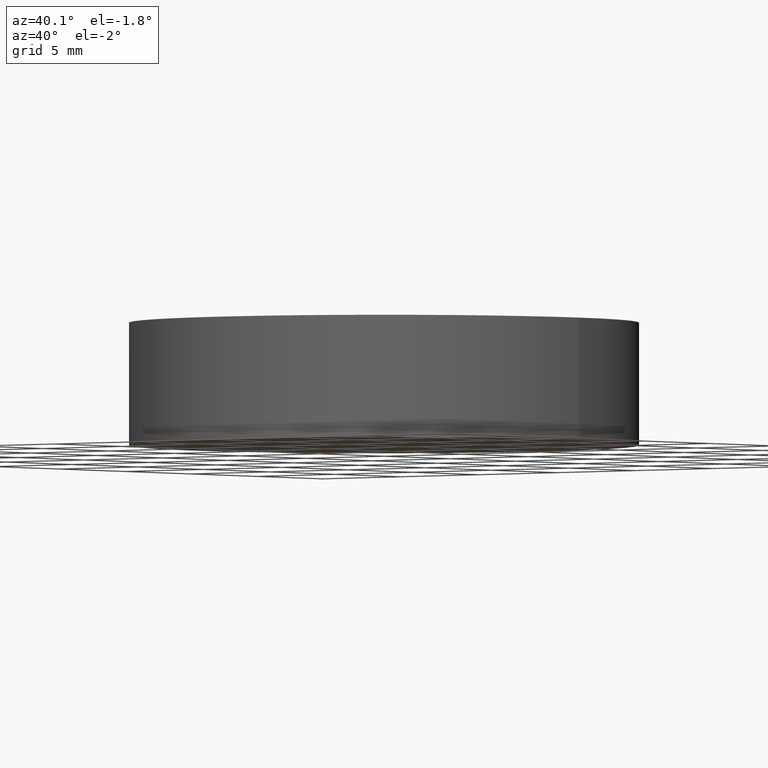
[diagram: clean part render]
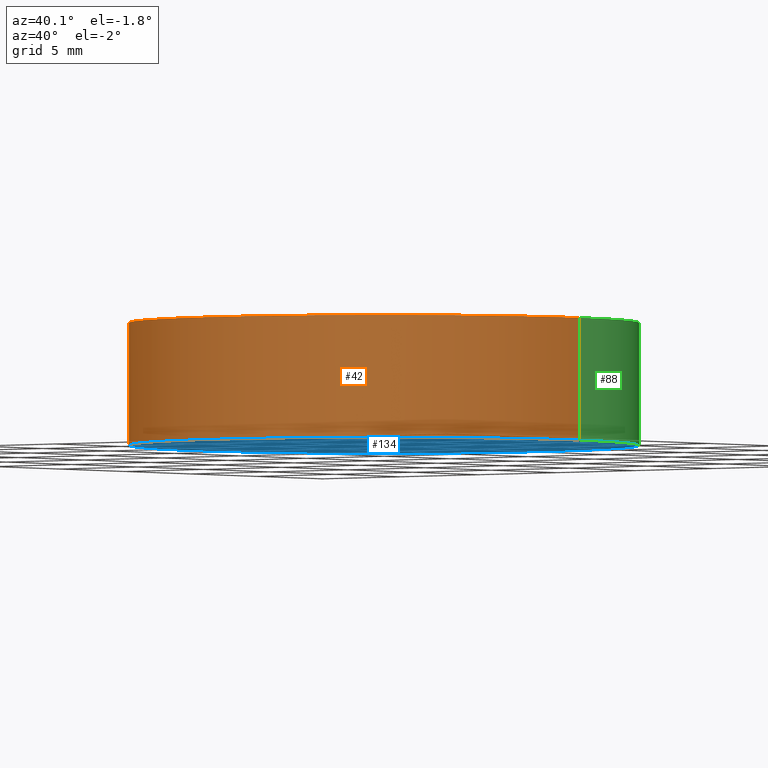
[diagram: same view with three faces highlighted in distinct colors, each labeled with its STEP entity id]
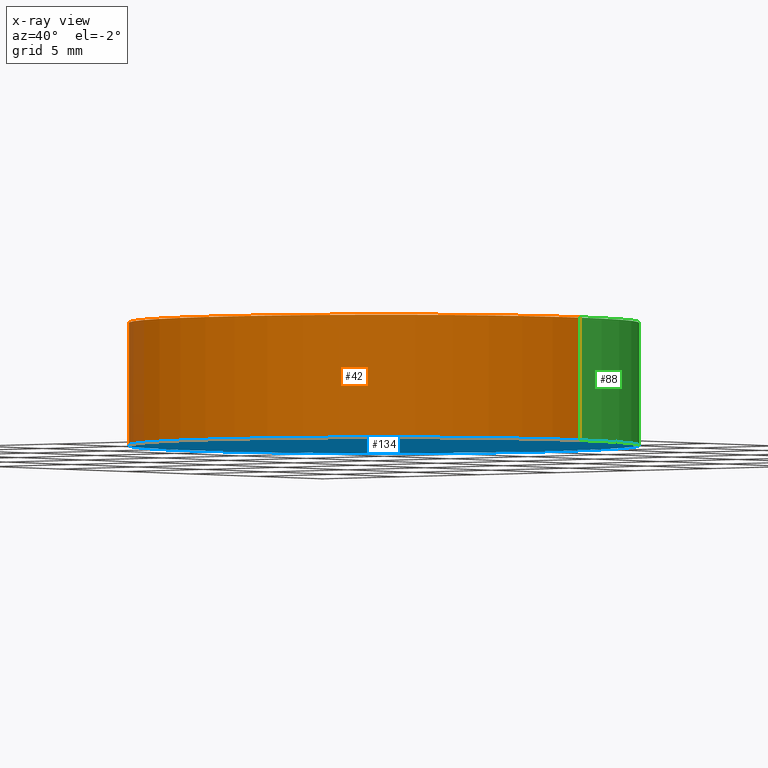
[diagram: x-ray of the same camera — body ghosted, the three highlighted faces saturated]
A machine part, auxiliary view with three faces highlighted in distinct colors.
The next image is the same camera in x-ray (body ghosted, the three faces saturated) — at least one of them is partly hidden behind the body in this view.
Their STEP definitions:

[orange] entity #42 — the highlighted cylindrical surface (partial cylindrical patch) has radius 12.5 mm, axis along (-0, -0, -1).
#7 = DIRECTION ( 'NONE',  ( -0.0000000000000000000, -0.0000000000000000000, -1.000000000000000000 ) ) ;
#13 = VECTOR ( 'NONE', #20, 1000.000000000000000 ) ;
#16 = ORIENTED_EDGE ( 'NONE', *, *, #23, .T. ) ;
#20 = DIRECTION ( 'NONE',  ( -0.0000000000000000000, -0.0000000000000000000, -1.000000000000000000 ) ) ;
#23 = EDGE_CURVE ( 'NONE', #119, #120, #91, .T. ) ;
#29 = EDGE_CURVE ( 'NONE', #69, #37, #121, .T. ) ;
#33 = CARTESIAN_POINT ( 'NONE',  ( 12.50000000000000000, 1.530808498934191500E-015, 6.000000000000000000 ) ) ;
#34 = DIRECTION ( 'NONE',  ( 0.0000000000000000000, 0.0000000000000000000, 1.000000000000000000 ) ) ;
#36 = CARTESIAN_POINT ( 'NONE',  ( 12.50000000000000000, 1.530808498934191500E-015, 6.000000000000000000 ) ) ;
#37 = VERTEX_POINT ( 'NONE', #46 ) ;
#38 = ORIENTED_EDGE ( 'NONE', *, *, #78, .T. ) ;
#42 = ADVANCED_FACE ( 'NONE', ( #53 ), #124, .T. ) ;
#44 = AXIS2_PLACEMENT_3D ( 'NONE', #140, #56, #130 ) ;
#46 = CARTESIAN_POINT ( 'NONE',  ( 12.50000000000000000, 1.530808498934191500E-015, 0.0000000000000000000 ) ) ;
#53 = FACE_OUTER_BOUND ( 'NONE', #117, .T. ) ;
#56 = DIRECTION ( 'NONE',  ( 0.0000000000000000000, 0.0000000000000000000, 1.000000000000000000 ) ) ;
#57 = ORIENTED_EDGE ( 'NONE', *, *, #113, .F. ) ;
#58 = CIRCLE ( 'NONE', #72, 12.50000000000000000 ) ;
#69 = VERTEX_POINT ( 'NONE', #36 ) ;
#72 = AXIS2_PLACEMENT_3D ( 'NONE', #103, #34, #83 ) ;
#74 = CARTESIAN_POINT ( 'NONE',  ( -12.50000000000000000, 0.0000000000000000000, 6.000000000000000000 ) ) ;
#77 = CIRCLE ( 'NONE', #44, 12.50000000000000000 ) ;
#78 = EDGE_CURVE ( 'NONE', #120, #37, #77, .T. ) ;
#83 = DIRECTION ( 'NONE',  ( 1.000000000000000000, 0.0000000000000000000, 0.0000000000000000000 ) ) ;
#91 = LINE ( 'NONE', #127, #13 ) ;
#92 = DIRECTION ( 'NONE',  ( -1.000000000000000000, 0.0000000000000000000, 0.0000000000000000000 ) ) ;
#97 = CARTESIAN_POINT ( 'NONE',  ( 0.0000000000000000000, 0.0000000000000000000, 6.000000000000000000 ) ) ;
#101 = CARTESIAN_POINT ( 'NONE',  ( -12.50000000000000000, 0.0000000000000000000, 0.0000000000000000000 ) ) ;
#102 = VECTOR ( 'NONE', #7, 1000.000000000000000 ) ;
#103 = CARTESIAN_POINT ( 'NONE',  ( 0.0000000000000000000, 0.0000000000000000000, 6.000000000000000000 ) ) ;
#108 = ORIENTED_EDGE ( 'NONE', *, *, #29, .F. ) ;
#113 = EDGE_CURVE ( 'NONE', #119, #69, #58, .T. ) ;
#117 = EDGE_LOOP ( 'NONE', ( #108, #57, #16, #38 ) ) ;
#119 = VERTEX_POINT ( 'NONE', #74 ) ;
#120 = VERTEX_POINT ( 'NONE', #101 ) ;
#121 = LINE ( 'NONE', #33, #102 ) ;
#122 = AXIS2_PLACEMENT_3D ( 'NONE', #97, #137, #92 ) ;
#124 = CYLINDRICAL_SURFACE ( 'NONE', #122, 12.50000000000000000 ) ;
#127 = CARTESIAN_POINT ( 'NONE',  ( -12.50000000000000000, 0.0000000000000000000, 6.000000000000000000 ) ) ;
#130 = DIRECTION ( 'NONE',  ( 1.000000000000000000, 0.0000000000000000000, 0.0000000000000000000 ) ) ;
#137 = DIRECTION ( 'NONE',  ( -0.0000000000000000000, -0.0000000000000000000, -1.000000000000000000 ) ) ;
#140 = CARTESIAN_POINT ( 'NONE',  ( 0.0000000000000000000, 0.0000000000000000000, 0.0000000000000000000 ) ) ;

[blue] entity #134 — the highlighted planar face has unit normal (0, 0, 1).
#10 = CIRCLE ( 'NONE', #39, 12.50000000000000000 ) ;
#11 = ORIENTED_EDGE ( 'NONE', *, *, #78, .F. ) ;
#12 = ORIENTED_EDGE ( 'NONE', *, *, #98, .F. ) ;
#37 = VERTEX_POINT ( 'NONE', #46 ) ;
#39 = AXIS2_PLACEMENT_3D ( 'NONE', #55, #129, #64 ) ;
#44 = AXIS2_PLACEMENT_3D ( 'NONE', #140, #56, #130 ) ;
#46 = CARTESIAN_POINT ( 'NONE',  ( 12.50000000000000000, 1.530808498934191500E-015, 0.0000000000000000000 ) ) ;
#55 = CARTESIAN_POINT ( 'NONE',  ( 0.0000000000000000000, 0.0000000000000000000, 0.0000000000000000000 ) ) ;
#56 = DIRECTION ( 'NONE',  ( 0.0000000000000000000, 0.0000000000000000000, 1.000000000000000000 ) ) ;
#61 = DIRECTION ( 'NONE',  ( 1.000000000000000000, 0.0000000000000000000, -0.0000000000000000000 ) ) ;
#64 = DIRECTION ( 'NONE',  ( 1.000000000000000000, 0.0000000000000000000, 0.0000000000000000000 ) ) ;
#77 = CIRCLE ( 'NONE', #44, 12.50000000000000000 ) ;
#78 = EDGE_CURVE ( 'NONE', #120, #37, #77, .T. ) ;
#87 = EDGE_LOOP ( 'NONE', ( #11, #12 ) ) ;
#95 = AXIS2_PLACEMENT_3D ( 'NONE', #116, #135, #61 ) ;
#98 = EDGE_CURVE ( 'NONE', #37, #120, #10, .T. ) ;
#101 = CARTESIAN_POINT ( 'NONE',  ( -12.50000000000000000, 0.0000000000000000000, 0.0000000000000000000 ) ) ;
#115 = PLANE ( 'NONE',  #95 ) ;
#116 = CARTESIAN_POINT ( 'NONE',  ( 0.0000000000000000000, 0.0000000000000000000, 0.0000000000000000000 ) ) ;
#118 = FACE_OUTER_BOUND ( 'NONE', #87, .T. ) ;
#120 = VERTEX_POINT ( 'NONE', #101 ) ;
#129 = DIRECTION ( 'NONE',  ( 0.0000000000000000000, 0.0000000000000000000, 1.000000000000000000 ) ) ;
#130 = DIRECTION ( 'NONE',  ( 1.000000000000000000, 0.0000000000000000000, 0.0000000000000000000 ) ) ;
#134 = ADVANCED_FACE ( 'NONE', ( #118 ), #115, .F. ) ;
#135 = DIRECTION ( 'NONE',  ( 0.0000000000000000000, 0.0000000000000000000, 1.000000000000000000 ) ) ;
#140 = CARTESIAN_POINT ( 'NONE',  ( 0.0000000000000000000, 0.0000000000000000000, 0.0000000000000000000 ) ) ;

[green] entity #88 — the highlighted cylindrical surface (partial cylindrical patch) has radius 12.5 mm, axis along (-0, -0, -1).
#4 = ORIENTED_EDGE ( 'NONE', *, *, #28, .F. ) ;
#5 = CIRCLE ( 'NONE', #21, 12.50000000000000000 ) ;
#7 = DIRECTION ( 'NONE',  ( -0.0000000000000000000, -0.0000000000000000000, -1.000000000000000000 ) ) ;
#9 = CARTESIAN_POINT ( 'NONE',  ( 0.0000000000000000000, 0.0000000000000000000, 6.000000000000000000 ) ) ;
#10 = CIRCLE ( 'NONE', #39, 12.50000000000000000 ) ;
#13 = VECTOR ( 'NONE', #20, 1000.000000000000000 ) ;
#20 = DIRECTION ( 'NONE',  ( -0.0000000000000000000, -0.0000000000000000000, -1.000000000000000000 ) ) ;
#21 = AXIS2_PLACEMENT_3D ( 'NONE', #9, #51, #43 ) ;
#22 = CYLINDRICAL_SURFACE ( 'NONE', #67, 12.50000000000000000 ) ;
#23 = EDGE_CURVE ( 'NONE', #119, #120, #91, .T. ) ;
#28 = EDGE_CURVE ( 'NONE', #69, #119, #5, .T. ) ;
#29 = EDGE_CURVE ( 'NONE', #69, #37, #121, .T. ) ;
#33 = CARTESIAN_POINT ( 'NONE',  ( 12.50000000000000000, 1.530808498934191500E-015, 6.000000000000000000 ) ) ;
#36 = CARTESIAN_POINT ( 'NONE',  ( 12.50000000000000000, 1.530808498934191500E-015, 6.000000000000000000 ) ) ;
#37 = VERTEX_POINT ( 'NONE', #46 ) ;
#39 = AXIS2_PLACEMENT_3D ( 'NONE', #55, #129, #64 ) ;
#43 = DIRECTION ( 'NONE',  ( 1.000000000000000000, 0.0000000000000000000, 0.0000000000000000000 ) ) ;
#46 = CARTESIAN_POINT ( 'NONE',  ( 12.50000000000000000, 1.530808498934191500E-015, 0.0000000000000000000 ) ) ;
#48 = CARTESIAN_POINT ( 'NONE',  ( 0.0000000000000000000, 0.0000000000000000000, 6.000000000000000000 ) ) ;
#49 = ORIENTED_EDGE ( 'NONE', *, *, #23, .F. ) ;
#51 = DIRECTION ( 'NONE',  ( 0.0000000000000000000, 0.0000000000000000000, 1.000000000000000000 ) ) ;
#55 = CARTESIAN_POINT ( 'NONE',  ( 0.0000000000000000000, 0.0000000000000000000, 0.0000000000000000000 ) ) ;
#59 = ORIENTED_EDGE ( 'NONE', *, *, #29, .T. ) ;
#64 = DIRECTION ( 'NONE',  ( 1.000000000000000000, 0.0000000000000000000, 0.0000000000000000000 ) ) ;
#65 = DIRECTION ( 'NONE',  ( -0.0000000000000000000, -0.0000000000000000000, -1.000000000000000000 ) ) ;
#67 = AXIS2_PLACEMENT_3D ( 'NONE', #48, #65, #75 ) ;
#68 = FACE_OUTER_BOUND ( 'NONE', #90, .T. ) ;
#69 = VERTEX_POINT ( 'NONE', #36 ) ;
#74 = CARTESIAN_POINT ( 'NONE',  ( -12.50000000000000000, 0.0000000000000000000, 6.000000000000000000 ) ) ;
#75 = DIRECTION ( 'NONE',  ( -1.000000000000000000, 0.0000000000000000000, 0.0000000000000000000 ) ) ;
#88 = ADVANCED_FACE ( 'NONE', ( #68 ), #22, .T. ) ;
#90 = EDGE_LOOP ( 'NONE', ( #4, #59, #96, #49 ) ) ;
#91 = LINE ( 'NONE', #127, #13 ) ;
#96 = ORIENTED_EDGE ( 'NONE', *, *, #98, .T. ) ;
#98 = EDGE_CURVE ( 'NONE', #37, #120, #10, .T. ) ;
#101 = CARTESIAN_POINT ( 'NONE',  ( -12.50000000000000000, 0.0000000000000000000, 0.0000000000000000000 ) ) ;
#102 = VECTOR ( 'NONE', #7, 1000.000000000000000 ) ;
#119 = VERTEX_POINT ( 'NONE', #74 ) ;
#120 = VERTEX_POINT ( 'NONE', #101 ) ;
#121 = LINE ( 'NONE', #33, #102 ) ;
#127 = CARTESIAN_POINT ( 'NONE',  ( -12.50000000000000000, 0.0000000000000000000, 6.000000000000000000 ) ) ;
#129 = DIRECTION ( 'NONE',  ( 0.0000000000000000000, 0.0000000000000000000, 1.000000000000000000 ) ) ;